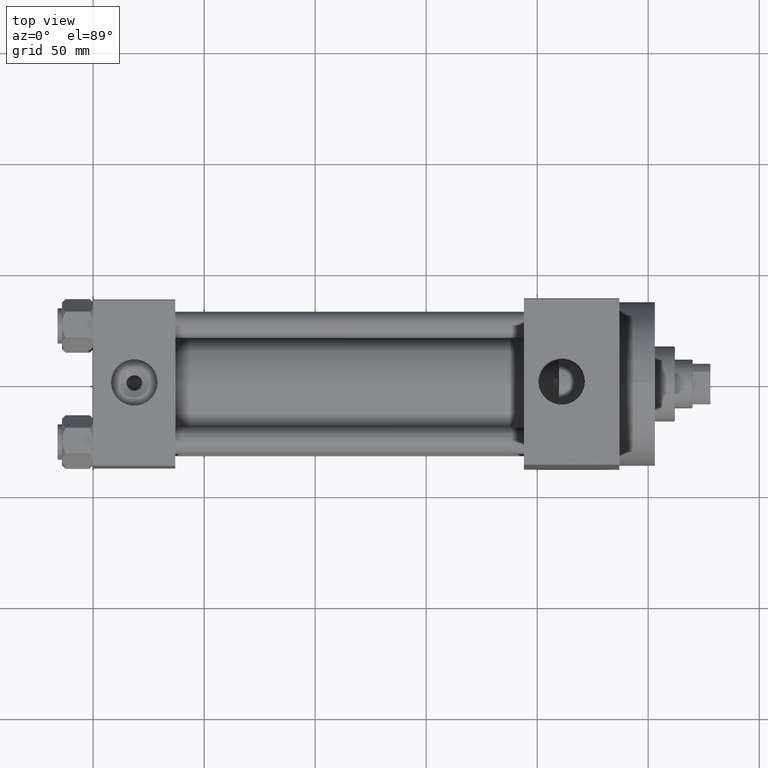
[diagram: clean part render]
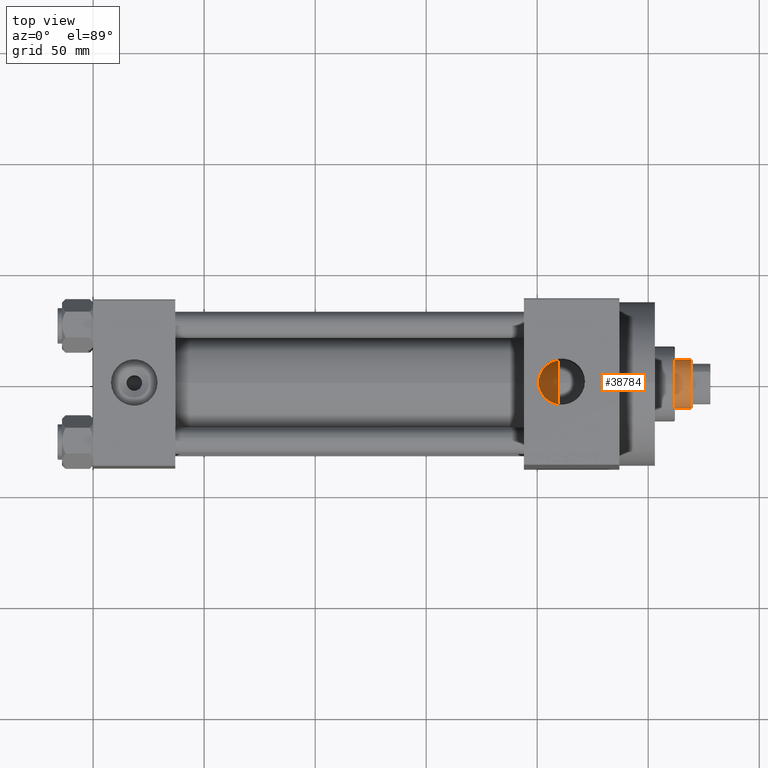
[diagram: same view with one face highlighted and labeled with its STEP entity id]
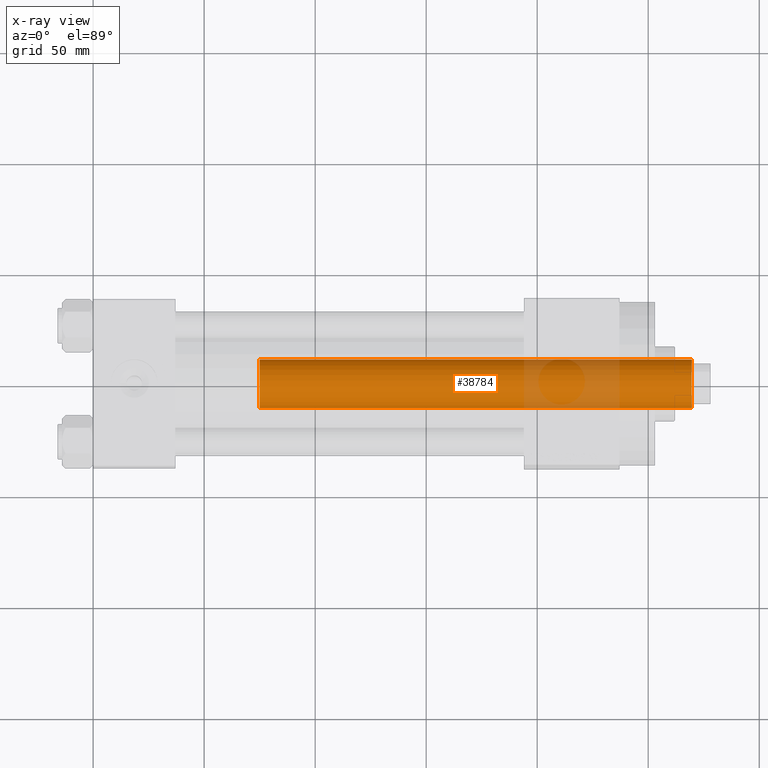
[diagram: x-ray of the same camera — body ghosted, the highlighted face saturated]
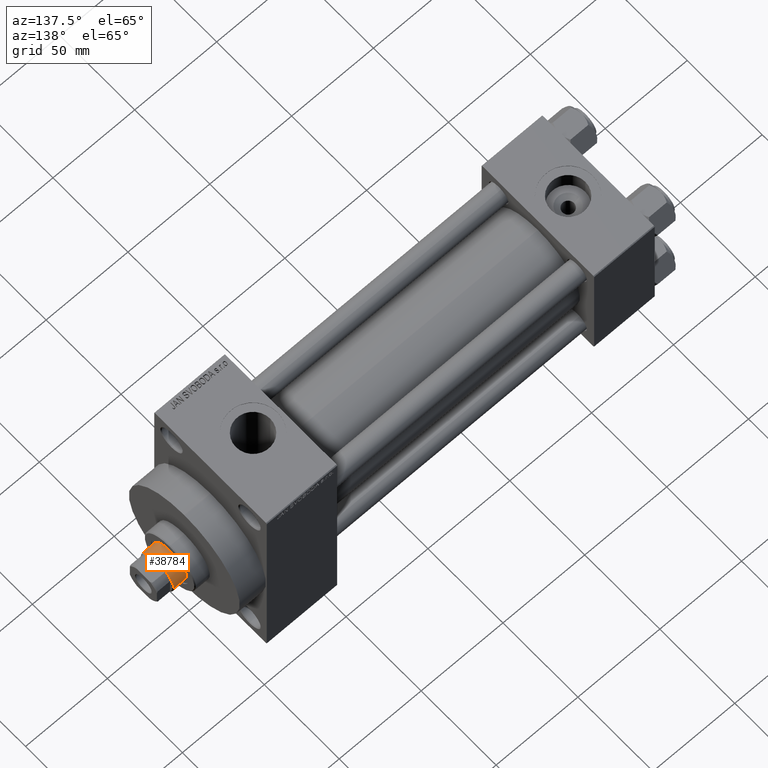
[diagram: same view with one face highlighted and labeled with its STEP entity id]
A machine part, top view. The second image highlights one B-rep face of the part: STEP entity #38784.
The next image is the same camera in x-ray: the body ghosted, the highlighted face saturated — about 14% of this face is hidden behind the body in this view.
A second angle (auxiliary view) of the same face is appended — the face is thin or edge-on in the first view.
In plain terms, the highlighted cylindrical surface (edge-blend (fillet) strip) has radius 11 mm, axis along (-1, 0, 0).
Its self-contained STEP definition (entity closure, byte-faithful):
#614 = ORIENTED_EDGE ( 'NONE', *, *, #19193, .T. ) ;
#1214 = AXIS2_PLACEMENT_3D ( 'NONE', #2469, #21087, #28246 ) ;
#2106 = ORIENTED_EDGE ( 'NONE', *, *, #24185, .F. ) ;
#2469 = CARTESIAN_POINT ( 'NONE',  ( 0.000000000000000000, 0.000000000000000000, 232.5000000000000284 ) ) ;
#2695 = CIRCLE ( 'NONE', #1214, 11.00000000000000000 ) ;
#3190 = FACE_OUTER_BOUND ( 'NONE', #19583, .T. ) ;
#9844 = LINE ( 'NONE', #24861, #24166 ) ;
#10459 = VERTEX_POINT ( 'NONE', #44238 ) ;
#10602 = DIRECTION ( 'NONE',  ( -0.000000000000000000, -0.000000000000000000, -1.000000000000000000 ) ) ;
#12573 = EDGE_CURVE ( 'NONE', #32044, #15220, #2695, .T. ) ;
#13539 = DIRECTION ( 'NONE',  ( 0.000000000000000000, 0.000000000000000000, 1.000000000000000000 ) ) ;
#14616 = AXIS2_PLACEMENT_3D ( 'NONE', #46865, #10602, #25139 ) ;
#15220 = VERTEX_POINT ( 'NONE', #17926 ) ;
#16044 = CARTESIAN_POINT ( 'NONE',  ( -11.00000000000000000, 0.000000000000000000, 233.0000000000000000 ) ) ;
#16514 = DIRECTION ( 'NONE',  ( -0.000000000000000000, -0.000000000000000000, -1.000000000000000000 ) ) ;
#16738 = VERTEX_POINT ( 'NONE', #28090 ) ;
#17747 = CYLINDRICAL_SURFACE ( 'NONE', #14616, 11.00000000000000000 ) ;
#17926 = CARTESIAN_POINT ( 'NONE',  ( -11.00000000000000000, 0.000000000000000000, 232.5000000000000284 ) ) ;
#18175 = CIRCLE ( 'NONE', #32649, 11.00000000000000000 ) ;
#19193 = EDGE_CURVE ( 'NONE', #16738, #10459, #18175, .T. ) ;
#19583 = EDGE_LOOP ( 'NONE', ( #2106, #34924, #36849, #614 ) ) ;
#20322 = LINE ( 'NONE', #16044, #46755 ) ;
#21087 = DIRECTION ( 'NONE',  ( 0.000000000000000000, 0.000000000000000000, -1.000000000000000000 ) ) ;
#21278 = DIRECTION ( 'NONE',  ( -0.000000000000000000, -0.000000000000000000, -1.000000000000000000 ) ) ;
#24166 = VECTOR ( 'NONE', #21278, 1000.000000000000000 ) ;
#24185 = EDGE_CURVE ( 'NONE', #32044, #10459, #9844, .T. ) ;
#24861 = CARTESIAN_POINT ( 'NONE',  ( 11.00000000000000000, 1.347111479062088405E-15, 233.0000000000000000 ) ) ;
#25139 = DIRECTION ( 'NONE',  ( -1.000000000000000000, 0.000000000000000000, 0.000000000000000000 ) ) ;
#28073 = DIRECTION ( 'NONE',  ( 1.000000000000000000, 0.000000000000000000, 0.000000000000000000 ) ) ;
#28090 = CARTESIAN_POINT ( 'NONE',  ( -11.00000000000000000, 0.000000000000000000, 38.00000000000000000 ) ) ;
#28246 = DIRECTION ( 'NONE',  ( 1.000000000000000000, 0.000000000000000000, 0.000000000000000000 ) ) ;
#28311 = CARTESIAN_POINT ( 'NONE',  ( 0.000000000000000000, 0.000000000000000000, 38.00000000000000000 ) ) ;
#32044 = VERTEX_POINT ( 'NONE', #38091 ) ;
#32649 = AXIS2_PLACEMENT_3D ( 'NONE', #28311, #13539, #28073 ) ;
#34924 = ORIENTED_EDGE ( 'NONE', *, *, #12573, .T. ) ;
#36849 = ORIENTED_EDGE ( 'NONE', *, *, #45856, .T. ) ;
#38091 = CARTESIAN_POINT ( 'NONE',  ( 11.00000000000000000, 1.347111479062088405E-15, 232.5000000000000284 ) ) ;
#38784 = ADVANCED_FACE ( 'NONE', ( #3190 ), #17747, .T. ) ;
#44238 = CARTESIAN_POINT ( 'NONE',  ( 11.00000000000000000, 1.347111479062088405E-15, 38.00000000000000000 ) ) ;
#45856 = EDGE_CURVE ( 'NONE', #15220, #16738, #20322, .T. ) ;
#46755 = VECTOR ( 'NONE', #16514, 1000.000000000000000 ) ;
#46865 = CARTESIAN_POINT ( 'NONE',  ( 0.000000000000000000, 0.000000000000000000, 233.0000000000000000 ) ) ;